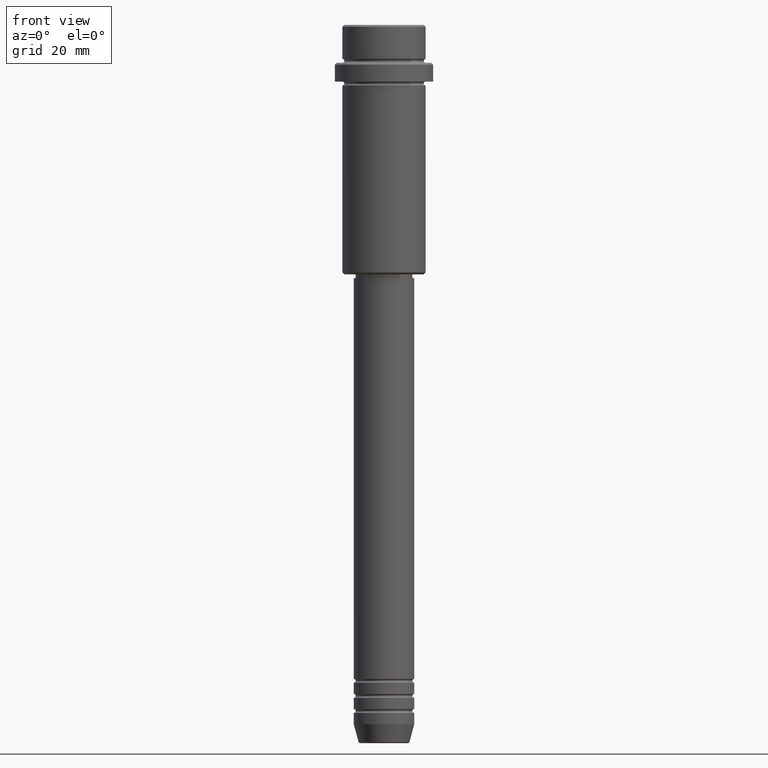
[diagram: clean part render]
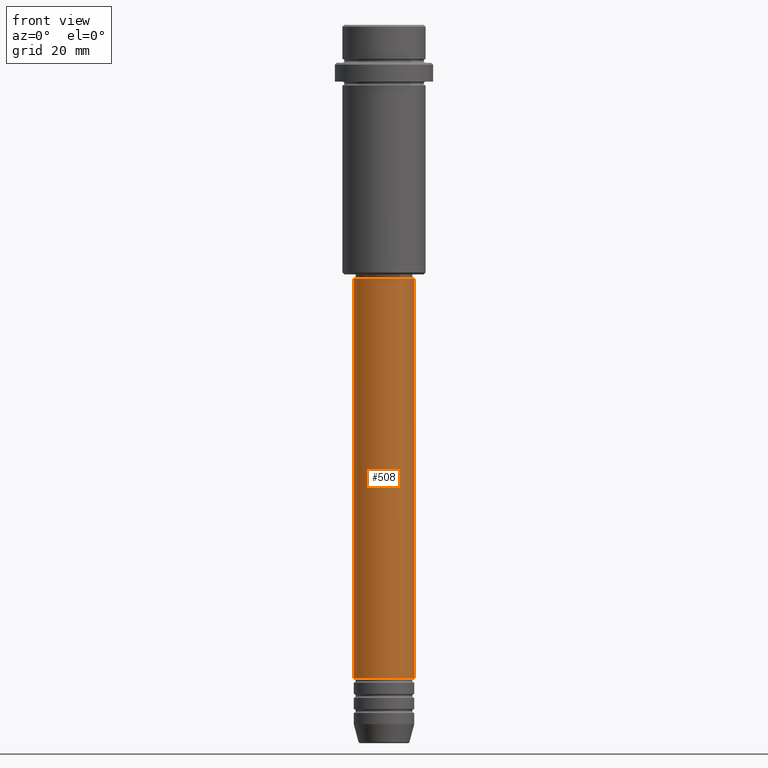
[diagram: same view with one face highlighted and labeled with its STEP entity id]
A machine part, front view. The second image highlights one B-rep face of the part: STEP entity #508.
In plain terms, the highlighted cylindrical surface (edge-blend (fillet) strip) has radius 8 mm, axis along (-0, -0, 1).
Its self-contained STEP definition (entity closure, byte-faithful):
#100 = CARTESIAN_POINT ( 'NONE',  ( 0.000000000000000000, 0.000000000000000000, -172.9999999999999147 ) ) ;
#115 = VERTEX_POINT ( 'NONE', #1306 ) ;
#145 = VERTEX_POINT ( 'NONE', #356 ) ;
#184 = CYLINDRICAL_SURFACE ( 'NONE', #460, 8.000000000000000000 ) ;
#191 = VERTEX_POINT ( 'NONE', #347 ) ;
#319 = DIRECTION ( 'NONE',  ( 1.000000000000000000, 0.000000000000000000, 0.000000000000000000 ) ) ;
#335 = CARTESIAN_POINT ( 'NONE',  ( 8.000000000000000000, 0.000000000000000000, 0.000000000000000000 ) ) ;
#347 = CARTESIAN_POINT ( 'NONE',  ( 8.000000000000000000, 0.000000000000000000, -172.9999999999999147 ) ) ;
#356 = CARTESIAN_POINT ( 'NONE',  ( -8.000000000000000000, 9.797174393178825657E-16, -172.9999999999999147 ) ) ;
#371 = EDGE_CURVE ( 'NONE', #191, #1206, #453, .T. ) ;
#382 = AXIS2_PLACEMENT_3D ( 'NONE', #100, #522, #319 ) ;
#384 = CIRCLE ( 'NONE', #1108, 8.000000000000000000 ) ;
#399 = ORIENTED_EDGE ( 'NONE', *, *, #371, .T. ) ;
#420 = CARTESIAN_POINT ( 'NONE',  ( -8.000000000000000000, 9.797174393178825657E-16, 0.000000000000000000 ) ) ;
#431 = FACE_OUTER_BOUND ( 'NONE', #719, .T. ) ;
#453 = LINE ( 'NONE', #335, #918 ) ;
#460 = AXIS2_PLACEMENT_3D ( 'NONE', #511, #968, #627 ) ;
#508 = ADVANCED_FACE ( 'NONE', ( #431 ), #184, .T. ) ;
#511 = CARTESIAN_POINT ( 'NONE',  ( 0.000000000000000000, 0.000000000000000000, 0.000000000000000000 ) ) ;
#520 = ORIENTED_EDGE ( 'NONE', *, *, #539, .T. ) ;
#522 = DIRECTION ( 'NONE',  ( -0.000000000000000000, -0.000000000000000000, 1.000000000000000000 ) ) ;
#539 = EDGE_CURVE ( 'NONE', #145, #191, #955, .T. ) ;
#556 = CARTESIAN_POINT ( 'NONE',  ( 8.000000000000000000, 0.000000000000000000, -67.00000000000000000 ) ) ;
#627 = DIRECTION ( 'NONE',  ( 1.000000000000000000, 0.000000000000000000, 0.000000000000000000 ) ) ;
#631 = ORIENTED_EDGE ( 'NONE', *, *, #1111, .F. ) ;
#719 = EDGE_LOOP ( 'NONE', ( #1371, #520, #399, #631 ) ) ;
#848 = DIRECTION ( 'NONE',  ( -0.000000000000000000, -0.000000000000000000, 1.000000000000000000 ) ) ;
#918 = VECTOR ( 'NONE', #1237, 1000.000000000000000 ) ;
#955 = CIRCLE ( 'NONE', #382, 8.000000000000000000 ) ;
#968 = DIRECTION ( 'NONE',  ( -0.000000000000000000, -0.000000000000000000, 1.000000000000000000 ) ) ;
#998 = DIRECTION ( 'NONE',  ( -0.000000000000000000, -0.000000000000000000, 1.000000000000000000 ) ) ;
#1108 = AXIS2_PLACEMENT_3D ( 'NONE', #1353, #998, #1229 ) ;
#1111 = EDGE_CURVE ( 'NONE', #115, #1206, #384, .T. ) ;
#1206 = VERTEX_POINT ( 'NONE', #556 ) ;
#1229 = DIRECTION ( 'NONE',  ( 1.000000000000000000, 0.000000000000000000, 0.000000000000000000 ) ) ;
#1237 = DIRECTION ( 'NONE',  ( -0.000000000000000000, -0.000000000000000000, 1.000000000000000000 ) ) ;
#1306 = CARTESIAN_POINT ( 'NONE',  ( -8.000000000000000000, 9.797174393178825657E-16, -67.00000000000000000 ) ) ;
#1353 = CARTESIAN_POINT ( 'NONE',  ( 0.000000000000000000, 0.000000000000000000, -67.00000000000000000 ) ) ;
#1371 = ORIENTED_EDGE ( 'NONE', *, *, #1381, .F. ) ;
#1381 = EDGE_CURVE ( 'NONE', #145, #115, #1392, .T. ) ;
#1392 = LINE ( 'NONE', #420, #1417 ) ;
#1417 = VECTOR ( 'NONE', #848, 1000.000000000000000 ) ;